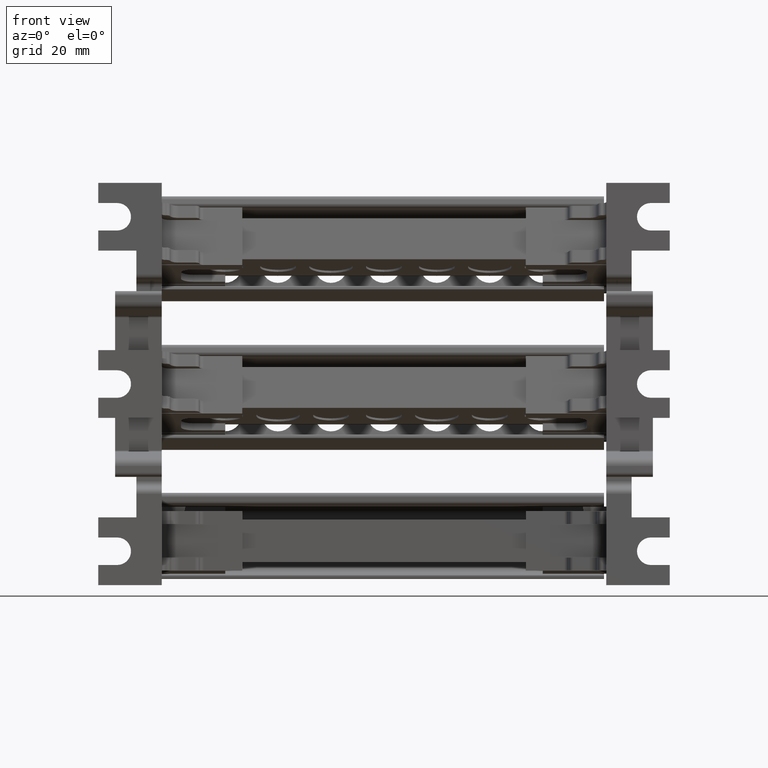
[diagram: clean part render]
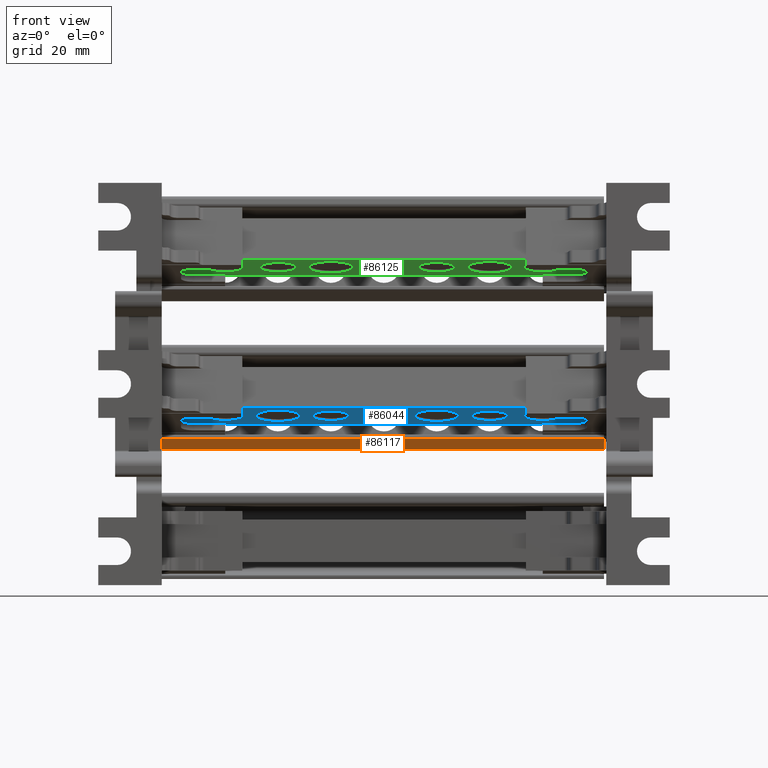
[diagram: same view with three faces highlighted in distinct colors, each labeled with its STEP entity id]
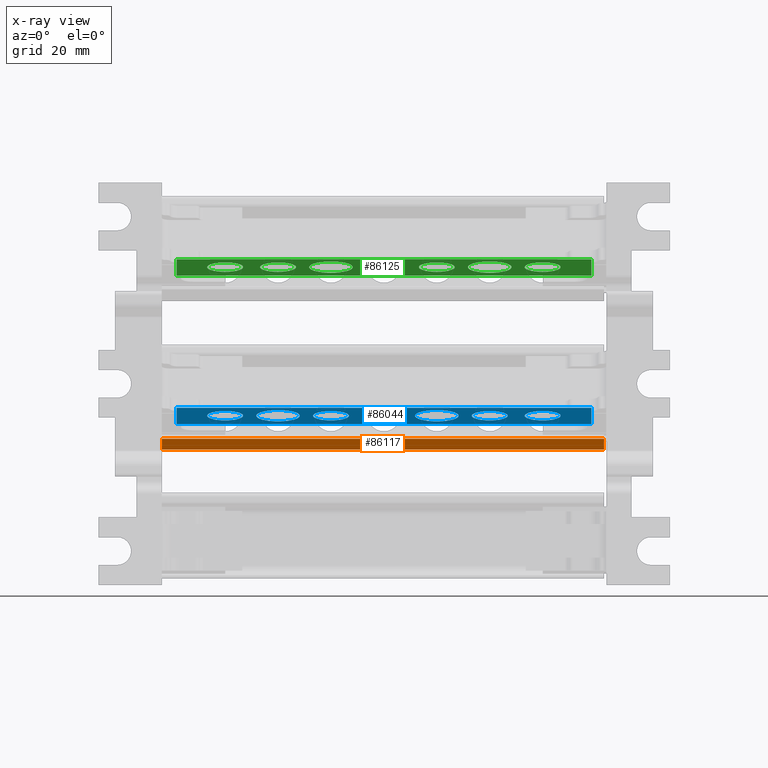
[diagram: x-ray of the same camera — body ghosted, the three highlighted faces saturated]
A machine part, front view with three faces highlighted in distinct colors.
The next image is the same camera in x-ray (body ghosted, the three faces saturated) — at least one of them is partly hidden behind the body in this view.
Their STEP definitions:

[orange] entity #86117 — the highlighted planar face has unit normal (0, -0.2419, -0.9703).
#241 = EDGE_CURVE ( 'NONE', #58085, #12368, #85978, .T. ) ;
#243 = EDGE_CURVE ( 'NONE', #20324, #58085, #85964, .T. ) ;
#12368 = VERTEX_POINT ( 'NONE', #72841 ) ;
#13487 = VECTOR ( 'NONE', #85987, 999.9999999999998900 ) ;
#13521 = VECTOR ( 'NONE', #86000, 1000.000000000000000 ) ;
#14037 = CARTESIAN_POINT ( 'NONE',  ( 43.67005696747482800, 266.3779126687655900, -9.778613820399819200 ) ) ;
#14040 = DIRECTION ( 'NONE',  ( -1.000000000000000000, -8.376886114858137600E-016, -3.359791546731990900E-015 ) ) ;
#14052 = LINE ( 'NONE', #14037, #19005 ) ;
#19005 = VECTOR ( 'NONE', #14040, 1000.000000000000000 ) ;
#20288 = VERTEX_POINT ( 'NONE', #73191 ) ;
#20324 = VERTEX_POINT ( 'NONE', #73389 ) ;
#40687 = ORIENTED_EDGE ( 'NONE', *, *, #243, .F. ) ;
#40762 = ORIENTED_EDGE ( 'NONE', *, *, #89547, .T. ) ;
#40774 = ORIENTED_EDGE ( 'NONE', *, *, #91820, .T. ) ;
#40775 = ORIENTED_EDGE ( 'NONE', *, *, #241, .F. ) ;
#50651 = DIRECTION ( 'NONE',  ( 3.462646595785480000E-015, -0.2419214864449051000, -0.9702958282896446700 ) ) ;
#50660 = FACE_OUTER_BOUND ( 'NONE', #77288, .T. ) ;
#50680 = DIRECTION ( 'NONE',  ( 0.0000000000000000000, 0.9702958282896446700, -0.2419214864449051000 ) ) ;
#50714 = PLANE ( 'NONE',  #67358 ) ;
#50716 = CARTESIAN_POINT ( 'NONE',  ( 43.67005696747482800, 267.5285583246342800, -10.06550148839052700 ) ) ;
#58085 = VERTEX_POINT ( 'NONE', #69943 ) ;
#67358 = AXIS2_PLACEMENT_3D ( 'NONE', #50716, #50651, #50680 ) ;
#69943 = CARTESIAN_POINT ( 'NONE',  ( 43.67005696747489200, 276.4362352860718500, -12.28643080546339100 ) ) ;
#72338 = VECTOR ( 'NONE', #84263, 1000.000000000000000 ) ;
#72841 = CARTESIAN_POINT ( 'NONE',  ( -60.79994303252513500, 276.4362352860727600, -12.28643080546403300 ) ) ;
#73191 = CARTESIAN_POINT ( 'NONE',  ( -60.79994303252518500, 266.3779126105878300, -9.778613805894877900 ) ) ;
#73389 = CARTESIAN_POINT ( 'NONE',  ( 43.67005696747481400, 266.3779126105874300, -9.778613805894382300 ) ) ;
#77288 = EDGE_LOOP ( 'NONE', ( #40687, #40762, #40774, #40775 ) ) ;
#84224 = LINE ( 'NONE', #84286, #72338 ) ;
#84263 = DIRECTION ( 'NONE',  ( 0.0000000000000000000, 0.9702958282896446700, -0.2419214864449051000 ) ) ;
#84286 = CARTESIAN_POINT ( 'NONE',  ( -60.79994303252517800, 267.5285583246341600, -10.06550148839087700 ) ) ;
#85961 = CARTESIAN_POINT ( 'NONE',  ( 43.67005696747486400, 276.4362352860718500, -12.28643080546345900 ) ) ;
#85964 = LINE ( 'NONE', #85980, #13487 ) ;
#85978 = LINE ( 'NONE', #85961, #13521 ) ;
#85980 = CARTESIAN_POINT ( 'NONE',  ( 43.67005696747476400, 266.3779126687655900, -9.778613820399781900 ) ) ;
#85987 = DIRECTION ( 'NONE',  ( 9.371236228642864500E-015, 0.9702958282896462200, -0.2419214864448991900 ) ) ;
#86000 = DIRECTION ( 'NONE',  ( -1.000000000000000000, 8.654813373745597700E-015, -5.726533854765768700E-015 ) ) ;
#86117 = ADVANCED_FACE ( 'NONE', ( #50660 ), #50714, .T. ) ;
#89547 = EDGE_CURVE ( 'NONE', #20324, #20288, #14052, .T. ) ;
#91820 = EDGE_CURVE ( 'NONE', #20288, #12368, #84224, .T. ) ;

[blue] entity #86044 — the highlighted planar face has unit normal (0, -0.2588, -0.9659).
#588 = EDGE_CURVE ( 'NONE', #14542, #10491, #84809, .T. ) ;
#625 = EDGE_CURVE ( 'NONE', #12026, #10859, #66829, .T. ) ;
#636 = EDGE_CURVE ( 'NONE', #10491, #10859, #66930, .T. ) ;
#7373 = DIRECTION ( 'NONE',  ( -3.448596597678680000E-015, 0.2588190451026485300, 0.9659258262890340100 ) ) ;
#7410 = CARTESIAN_POINT ( 'NONE',  ( -8.329943032525321200, 261.4439999081703300, -4.332175948218287300 ) ) ;
#7419 = DIRECTION ( 'NONE',  ( 0.0000000000000000000, -0.9659258262890337800, 0.2588190451026493000 ) ) ;
#10491 = VERTEX_POINT ( 'NONE', #75438 ) ;
#10859 = VERTEX_POINT ( 'NONE', #75567 ) ;
#11930 = VERTEX_POINT ( 'NONE', #73671 ) ;
#12026 = VERTEX_POINT ( 'NONE', #72559 ) ;
#14542 = VERTEX_POINT ( 'NONE', #72881 ) ;
#14553 = VERTEX_POINT ( 'NONE', #72890 ) ;
#14571 = VERTEX_POINT ( 'NONE', #72876 ) ;
#14619 = VERTEX_POINT ( 'NONE', #73058 ) ;
#17856 = CIRCLE ( 'NONE', #17880, 4.249999999999992900 ) ;
#17880 = AXIS2_PLACEMENT_3D ( 'NONE', #32942, #32919, #32933 ) ;
#17893 = CIRCLE ( 'NONE', #17938, 4.249999999999992000 ) ;
#17938 = AXIS2_PLACEMENT_3D ( 'NONE', #32910, #32927, #32928 ) ;
#17955 = CIRCLE ( 'NONE', #17970, 5.149999999999981700 ) ;
#17970 = AXIS2_PLACEMENT_3D ( 'NONE', #33011, #33012, #33021 ) ;
#17990 = CIRCLE ( 'NONE', #18081, 5.149999999999981700 ) ;
#18003 = CIRCLE ( 'NONE', #18018, 4.249999999999992900 ) ;
#18018 = AXIS2_PLACEMENT_3D ( 'NONE', #7410, #7373, #7419 ) ;
#18081 = AXIS2_PLACEMENT_3D ( 'NONE', #32999, #33013, #33000 ) ;
#19147 = CIRCLE ( 'NONE', #19148, 4.249999999999992900 ) ;
#19148 = AXIS2_PLACEMENT_3D ( 'NONE', #33314, #33293, #33315 ) ;
#19155 = CIRCLE ( 'NONE', #19188, 4.249999999999992000 ) ;
#19188 = AXIS2_PLACEMENT_3D ( 'NONE', #33250, #33262, #33268 ) ;
#20356 = VERTEX_POINT ( 'NONE', #73352 ) ;
#20358 = VERTEX_POINT ( 'NONE', #73361 ) ;
#20370 = VERTEX_POINT ( 'NONE', #73409 ) ;
#20373 = VERTEX_POINT ( 'NONE', #73465 ) ;
#20418 = VERTEX_POINT ( 'NONE', #73430 ) ;
#20419 = VERTEX_POINT ( 'NONE', #73494 ) ;
#20424 = VERTEX_POINT ( 'NONE', #73448 ) ;
#20432 = VERTEX_POINT ( 'NONE', #73497 ) ;
#20436 = VERTEX_POINT ( 'NONE', #73555 ) ;
#20448 = VERTEX_POINT ( 'NONE', #73529 ) ;
#20458 = VERTEX_POINT ( 'NONE', #73624 ) ;
#20472 = VERTEX_POINT ( 'NONE', #73617 ) ;
#20476 = VERTEX_POINT ( 'NONE', #73618 ) ;
#20477 = VERTEX_POINT ( 'NONE', #73616 ) ;
#24962 = CARTESIAN_POINT ( 'NONE',  ( -33.32994303252532100, 261.4439999081705500, -4.332175948218443700 ) ) ;
#24979 = DIRECTION ( 'NONE',  ( -3.448596597678680000E-015, 0.2588190451026485300, 0.9659258262890340100 ) ) ;
#25000 = DIRECTION ( 'NONE',  ( 0.0000000000000000000, 0.9659258262890337800, -0.2588190451026496900 ) ) ;
#25023 = DIRECTION ( 'NONE',  ( -0.0000000000000000000, -0.9659258262890340100, 0.2588190451026485300 ) ) ;
#25028 = CARTESIAN_POINT ( 'NONE',  ( 32.77005696747561100, 268.9782213532253100, -6.350964500018943000 ) ) ;
#25033 = LINE ( 'NONE', #25028, #73421 ) ;
#25079 = LINE ( 'NONE', #25094, #73384 ) ;
#25086 = DIRECTION ( 'NONE',  ( -1.000000000000000000, -8.925624783554386000E-016, -3.331088518150330400E-015 ) ) ;
#25094 = CARTESIAN_POINT ( 'NONE',  ( -57.42994303252525200, 254.4929479779187600, -2.469647196959783300 ) ) ;
#25117 = DIRECTION ( 'NONE',  ( -1.000000000000000000, -8.925624783554386000E-016, -3.331088518150330400E-015 ) ) ;
#25138 = DIRECTION ( 'NONE',  ( -3.448596597678680000E-015, 0.2588190451026485300, 0.9659258262890340100 ) ) ;
#25154 = CARTESIAN_POINT ( 'NONE',  ( -57.42994303252525200, 254.4893339588888900, -2.468678823479284000 ) ) ;
#25183 = LINE ( 'NONE', #25154, #73408 ) ;
#25195 = CARTESIAN_POINT ( 'NONE',  ( 16.67005696747467500, 261.4439999081702100, -4.332175948218160300 ) ) ;
#25215 = DIRECTION ( 'NONE',  ( 0.0000000000000000000, 0.9659258262890339000, -0.2588190451026485800 ) ) ;
#25317 = DIRECTION ( 'NONE',  ( -3.448596597678680000E-015, 0.2588190451026485300, 0.9659258262890340100 ) ) ;
#25332 = CARTESIAN_POINT ( 'NONE',  ( -8.329943032525321200, 261.4439999081703300, -4.332175948218287300 ) ) ;
#25345 = DIRECTION ( 'NONE',  ( -3.448596597678680000E-015, 0.2588190451026485300, 0.9659258262890340100 ) ) ;
#25347 = DIRECTION ( 'NONE',  ( 0.0000000000000000000, -0.9659258262890337800, 0.2588190451026493000 ) ) ;
#25353 = CARTESIAN_POINT ( 'NONE',  ( -20.82994303252532100, 261.4439999081704400, -4.332175948218369900 ) ) ;
#25361 = DIRECTION ( 'NONE',  ( 0.0000000000000000000, 0.9659258262890337800, -0.2588190451026491900 ) ) ;
#25435 = DIRECTION ( 'NONE',  ( -1.000000000000000000, -8.925624783554386000E-016, -3.331088518150330400E-015 ) ) ;
#25446 = CARTESIAN_POINT ( 'NONE',  ( -57.42994303252525200, 254.4929479779195000, -2.469647196959968000 ) ) ;
#25450 = LINE ( 'NONE', #25446, #73491 ) ;
#32910 = CARTESIAN_POINT ( 'NONE',  ( 16.67005696747467500, 261.4439999081702100, -4.332175948218160300 ) ) ;
#32919 = DIRECTION ( 'NONE',  ( -3.448596597678680000E-015, 0.2588190451026485300, 0.9659258262890340100 ) ) ;
#32927 = DIRECTION ( 'NONE',  ( -3.448596597678680000E-015, 0.2588190451026485300, 0.9659258262890340100 ) ) ;
#32928 = DIRECTION ( 'NONE',  ( 0.0000000000000000000, 0.9659258262890339000, -0.2588190451026485800 ) ) ;
#32933 = DIRECTION ( 'NONE',  ( 0.0000000000000000000, 0.9659258262890337800, -0.2588190451026491900 ) ) ;
#32942 = CARTESIAN_POINT ( 'NONE',  ( -20.82994303252532100, 261.4439999081704400, -4.332175948218369900 ) ) ;
#32999 = CARTESIAN_POINT ( 'NONE',  ( 4.170056967474678800, 261.4439999081703300, -4.332175948218234900 ) ) ;
#33000 = DIRECTION ( 'NONE',  ( 0.0000000000000000000, 0.9659258262890337800, -0.2588190451026496900 ) ) ;
#33011 = CARTESIAN_POINT ( 'NONE',  ( -33.32994303252532100, 261.4439999081705500, -4.332175948218443700 ) ) ;
#33012 = DIRECTION ( 'NONE',  ( -3.448596597678680000E-015, 0.2588190451026485300, 0.9659258262890340100 ) ) ;
#33013 = DIRECTION ( 'NONE',  ( -3.448596597678680000E-015, 0.2588190451026485300, 0.9659258262890340100 ) ) ;
#33021 = DIRECTION ( 'NONE',  ( 0.0000000000000000000, 0.9659258262890337800, -0.2588190451026496900 ) ) ;
#33250 = CARTESIAN_POINT ( 'NONE',  ( -45.82994303252532800, 261.4439999081706700, -4.332175948218509400 ) ) ;
#33262 = DIRECTION ( 'NONE',  ( -3.448596597678680000E-015, 0.2588190451026485300, 0.9659258262890340100 ) ) ;
#33268 = DIRECTION ( 'NONE',  ( 0.0000000000000000000, -0.9659258262890339000, 0.2588190451026488000 ) ) ;
#33293 = DIRECTION ( 'NONE',  ( -3.448596597678680000E-015, 0.2588190451026485300, 0.9659258262890340100 ) ) ;
#33314 = CARTESIAN_POINT ( 'NONE',  ( 29.17005696747467200, 261.4439999081700400, -4.332175948218072400 ) ) ;
#33315 = DIRECTION ( 'NONE',  ( 0.0000000000000000000, -0.9659258262890337800, 0.2588190451026493600 ) ) ;
#33860 = LINE ( 'NONE', #33868, #64350 ) ;
#33868 = CARTESIAN_POINT ( 'NONE',  ( -49.37394303252701600, 254.4893339588896900, -2.468678823479462100 ) ) ;
#33878 = DIRECTION ( 'NONE',  ( 0.0000000000000000000, 0.9659258262882264300, -0.2588190451056627300 ) ) ;
#38511 = ORIENTED_EDGE ( 'NONE', *, *, #91130, .T. ) ;
#38516 = ORIENTED_EDGE ( 'NONE', *, *, #89952, .T. ) ;
#38523 = ORIENTED_EDGE ( 'NONE', *, *, #91253, .T. ) ;
#38524 = ORIENTED_EDGE ( 'NONE', *, *, #91345, .T. ) ;
#38526 = ORIENTED_EDGE ( 'NONE', *, *, #92657, .T. ) ;
#38527 = ORIENTED_EDGE ( 'NONE', *, *, #91361, .T. ) ;
#38540 = ORIENTED_EDGE ( 'NONE', *, *, #91195, .T. ) ;
#38541 = ORIENTED_EDGE ( 'NONE', *, *, #91148, .T. ) ;
#38568 = ORIENTED_EDGE ( 'NONE', *, *, #91289, .T. ) ;
#38573 = ORIENTED_EDGE ( 'NONE', *, *, #89819, .T. ) ;
#38577 = ORIENTED_EDGE ( 'NONE', *, *, #91145, .T. ) ;
#38578 = ORIENTED_EDGE ( 'NONE', *, *, #588, .T. ) ;
#38579 = ORIENTED_EDGE ( 'NONE', *, *, #89774, .T. ) ;
#38584 = ORIENTED_EDGE ( 'NONE', *, *, #89933, .T. ) ;
#38585 = ORIENTED_EDGE ( 'NONE', *, *, #89880, .T. ) ;
#38592 = ORIENTED_EDGE ( 'NONE', *, *, #91184, .T. ) ;
#38595 = ORIENTED_EDGE ( 'NONE', *, *, #90007, .T. ) ;
#38597 = ORIENTED_EDGE ( 'NONE', *, *, #91293, .T. ) ;
#38603 = ORIENTED_EDGE ( 'NONE', *, *, #91255, .T. ) ;
#38605 = ORIENTED_EDGE ( 'NONE', *, *, #89895, .T. ) ;
#38606 = ORIENTED_EDGE ( 'NONE', *, *, #636, .T. ) ;
#38611 = ORIENTED_EDGE ( 'NONE', *, *, #91379, .T. ) ;
#38628 = ORIENTED_EDGE ( 'NONE', *, *, #625, .F. ) ;
#38629 = ORIENTED_EDGE ( 'NONE', *, *, #91235, .T. ) ;
#40903 = LINE ( 'NONE', #40978, #73082 ) ;
#40933 = DIRECTION ( 'NONE',  ( -0.0000000000000000000, -0.9659258262890340100, 0.2588190451026485300 ) ) ;
#40978 = CARTESIAN_POINT ( 'NONE',  ( 40.67005696747465700, 268.9782213532253600, -6.350964500018915400 ) ) ;
#41019 = DIRECTION ( 'NONE',  ( -3.448596597678680000E-015, 0.2588190451026485300, 0.9659258262890340100 ) ) ;
#41045 = DIRECTION ( 'NONE',  ( -3.448596597678680000E-015, 0.2588190451026485300, 0.9659258262890340100 ) ) ;
#41047 = DIRECTION ( 'NONE',  ( 0.0000000000000000000, 0.9659258262890337800, -0.2588190451026496900 ) ) ;
#41093 = CARTESIAN_POINT ( 'NONE',  ( -45.82994303252532800, 261.4439999081706700, -4.332175948218509400 ) ) ;
#41095 = DIRECTION ( 'NONE',  ( 0.0000000000000000000, -0.9659258262890339000, 0.2588190451026488000 ) ) ;
#41106 = CARTESIAN_POINT ( 'NONE',  ( 4.170056967474678800, 261.4439999081703300, -4.332175948218234900 ) ) ;
#41291 = DIRECTION ( 'NONE',  ( -3.448596597678680000E-015, 0.2588190451026485300, 0.9659258262890340100 ) ) ;
#41295 = CARTESIAN_POINT ( 'NONE',  ( 29.17005696747467200, 261.4439999081700400, -4.332175948218072400 ) ) ;
#41356 = DIRECTION ( 'NONE',  ( 0.0000000000000000000, -0.9659258262890337800, 0.2588190451026493600 ) ) ;
#41377 = DIRECTION ( 'NONE',  ( 0.0000000000000000000, 0.9659258262890340100, -0.2588190451026485300 ) ) ;
#41390 = CARTESIAN_POINT ( 'NONE',  ( -57.26994303252539700, 268.9782213532252500, -6.350964500019242300 ) ) ;
#41448 = LINE ( 'NONE', #41390, #73211 ) ;
#56366 = VERTEX_POINT ( 'NONE', #69501 ) ;
#56537 = VERTEX_POINT ( 'NONE', #69706 ) ;
#60303 = FACE_BOUND ( 'NONE', #77210, .T. ) ;
#60304 = FACE_BOUND ( 'NONE', #77158, .T. ) ;
#60305 = FACE_BOUND ( 'NONE', #77164, .T. ) ;
#60310 = DIRECTION ( 'NONE',  ( 3.448596597678680000E-015, -0.2588190451026485300, -0.9659258262890340100 ) ) ;
#60318 = FACE_BOUND ( 'NONE', #77191, .T. ) ;
#60319 = DIRECTION ( 'NONE',  ( 0.0000000000000000000, 0.9659258262890340100, -0.2588190451026485300 ) ) ;
#60331 = PLANE ( 'NONE',  #67251 ) ;
#60340 = CARTESIAN_POINT ( 'NONE',  ( -57.42994303252525200, 268.9782213532252500, -6.350964500019243200 ) ) ;
#60347 = FACE_BOUND ( 'NONE', #77188, .T. ) ;
#60351 = FACE_OUTER_BOUND ( 'NONE', #77276, .T. ) ;
#60357 = FACE_BOUND ( 'NONE', #77252, .T. ) ;
#60358 = FACE_BOUND ( 'NONE', #77233, .T. ) ;
#64350 = VECTOR ( 'NONE', #33878, 1000.000000000000000 ) ;
#66808 = CARTESIAN_POINT ( 'NONE',  ( 40.67005696747467900, 261.4850255335666700, -4.343168731412051300 ) ) ;
#66810 = DIRECTION ( 'NONE',  ( 9.205753445159680800E-015, 0.9659258262890340100, -0.2588190451026483000 ) ) ;
#66829 = LINE ( 'NONE', #66808, #89501 ) ;
#66921 = CARTESIAN_POINT ( 'NONE',  ( 40.67005696747475000, 268.9782213532244000, -6.350964500018673000 ) ) ;
#66930 = LINE ( 'NONE', #66921, #89477 ) ;
#66940 = DIRECTION ( 'NONE',  ( -1.009980722526125500E-014, -0.9659258262890337800, 0.2588190451026491900 ) ) ;
#67251 = AXIS2_PLACEMENT_3D ( 'NONE', #60340, #60310, #60319 ) ;
#69501 = CARTESIAN_POINT ( 'NONE',  ( -49.37394303252703100, 254.4929479779192700, -2.469647196959896100 ) ) ;
#69706 = CARTESIAN_POINT ( 'NONE',  ( -49.37394303252701600, 254.4893339588895200, -2.468678823479412400 ) ) ;
#72559 = CARTESIAN_POINT ( 'NONE',  ( 40.67005696747463600, 261.4850255335663300, -4.343168731411958000 ) ) ;
#72876 = CARTESIAN_POINT ( 'NONE',  ( 40.67005696747463600, 254.4929479779188700, -2.469647196959452500 ) ) ;
#72881 = CARTESIAN_POINT ( 'NONE',  ( -57.26994303252536200, 268.9782213532252500, -6.350964500019242300 ) ) ;
#72890 = CARTESIAN_POINT ( 'NONE',  ( -57.26994303252539700, 254.4929479779192700, -2.469647196959920500 ) ) ;
#73051 = AXIS2_PLACEMENT_3D ( 'NONE', #41093, #41019, #41095 ) ;
#73058 = CARTESIAN_POINT ( 'NONE',  ( 32.77005696747561100, 254.4893339588889500, -2.468678823478989600 ) ) ;
#73082 = VECTOR ( 'NONE', #40933, 1000.000000000000000 ) ;
#73115 = CIRCLE ( 'NONE', #73282, 5.149999999999981700 ) ;
#73150 = CIRCLE ( 'NONE', #73051, 4.249999999999992000 ) ;
#73211 = VECTOR ( 'NONE', #41377, 1000.000000000000000 ) ;
#73215 = CIRCLE ( 'NONE', #73286, 5.149999999999981700 ) ;
#73246 = AXIS2_PLACEMENT_3D ( 'NONE', #41295, #41291, #41356 ) ;
#73270 = CIRCLE ( 'NONE', #73246, 4.249999999999992900 ) ;
#73282 = AXIS2_PLACEMENT_3D ( 'NONE', #41106, #41045, #41047 ) ;
#73286 = AXIS2_PLACEMENT_3D ( 'NONE', #24962, #24979, #25000 ) ;
#73291 = CIRCLE ( 'NONE', #73295, 4.249999999999992000 ) ;
#73295 = AXIS2_PLACEMENT_3D ( 'NONE', #25195, #25138, #25215 ) ;
#73349 = CIRCLE ( 'NONE', #73401, 4.249999999999992900 ) ;
#73352 = CARTESIAN_POINT ( 'NONE',  ( -33.32994303252532100, 256.4694819027820900, -2.999257865939807500 ) ) ;
#73361 = CARTESIAN_POINT ( 'NONE',  ( -8.329943032525321200, 265.5491846698987500, -5.432156889904542000 ) ) ;
#73384 = VECTOR ( 'NONE', #25086, 1000.000000000000000 ) ;
#73401 = AXIS2_PLACEMENT_3D ( 'NONE', #25353, #25317, #25361 ) ;
#73408 = VECTOR ( 'NONE', #25117, 1000.000000000000000 ) ;
#73409 = CARTESIAN_POINT ( 'NONE',  ( -45.82994303252532800, 265.5491846698990900, -5.432156889904763200 ) ) ;
#73421 = VECTOR ( 'NONE', #25023, 1000.000000000000000 ) ;
#73430 = CARTESIAN_POINT ( 'NONE',  ( 4.170056967474679700, 266.4185179135587900, -5.665094030496868900 ) ) ;
#73448 = CARTESIAN_POINT ( 'NONE',  ( -20.82994303252532100, 257.3388151464420700, -3.232195006532115200 ) ) ;
#73451 = AXIS2_PLACEMENT_3D ( 'NONE', #25332, #25345, #25347 ) ;
#73465 = CARTESIAN_POINT ( 'NONE',  ( 16.67005696747467500, 257.3388151464417900, -3.232195006531904700 ) ) ;
#73470 = CIRCLE ( 'NONE', #73451, 4.249999999999992900 ) ;
#73491 = VECTOR ( 'NONE', #25435, 1000.000000000000000 ) ;
#73494 = CARTESIAN_POINT ( 'NONE',  ( -8.329943032525321200, 257.3388151464419600, -3.232195006532033500 ) ) ;
#73497 = CARTESIAN_POINT ( 'NONE',  ( -33.32994303252532100, 266.4185179135590700, -5.665094030497078500 ) ) ;
#73529 = CARTESIAN_POINT ( 'NONE',  ( 4.170056967474678800, 256.4694819027818100, -2.999257865939598300 ) ) ;
#73555 = CARTESIAN_POINT ( 'NONE',  ( 29.17005696747467200, 265.5491846698984100, -5.432156889904327100 ) ) ;
#73616 = CARTESIAN_POINT ( 'NONE',  ( -20.82994303252532100, 265.5491846698988600, -5.432156889904624600 ) ) ;
#73617 = CARTESIAN_POINT ( 'NONE',  ( 16.67005696747467500, 265.5491846698985800, -5.432156889904412400 ) ) ;
#73618 = CARTESIAN_POINT ( 'NONE',  ( -45.82994303252532800, 257.3388151464423000, -3.232195006532255600 ) ) ;
#73624 = CARTESIAN_POINT ( 'NONE',  ( 29.17005696747467200, 257.3388151464416200, -3.232195006531818100 ) ) ;
#73671 = CARTESIAN_POINT ( 'NONE',  ( 32.77005696747561100, 254.4929479779189900, -2.469647196959505700 ) ) ;
#75438 = CARTESIAN_POINT ( 'NONE',  ( 40.67005696747475000, 268.9782213532247400, -6.350964500018753800 ) ) ;
#75567 = CARTESIAN_POINT ( 'NONE',  ( 40.67005696747470000, 263.6692433276639300, -4.928428125434423100 ) ) ;
#77158 = EDGE_LOOP ( 'NONE', ( #38577, #38579 ) ) ;
#77164 = EDGE_LOOP ( 'NONE', ( #38524, #38585 ) ) ;
#77188 = EDGE_LOOP ( 'NONE', ( #38541, #38516 ) ) ;
#77191 = EDGE_LOOP ( 'NONE', ( #38629, #38584 ) ) ;
#77210 = EDGE_LOOP ( 'NONE', ( #38568, #38605 ) ) ;
#77233 = EDGE_LOOP ( 'NONE', ( #38592, #38573 ) ) ;
#77252 = EDGE_LOOP ( 'NONE', ( #38527, #38595 ) ) ;
#77276 = EDGE_LOOP ( 'NONE', ( #38597, #38526, #38611, #38540, #38578, #38606, #38628, #38511, #38603, #38523 ) ) ;
#84809 = LINE ( 'NONE', #84924, #89301 ) ;
#84899 = DIRECTION ( 'NONE',  ( 1.000000000000000000, 8.925624783554386000E-016, 3.331088518150330400E-015 ) ) ;
#84924 = CARTESIAN_POINT ( 'NONE',  ( -57.42994303252525200, 268.9782213532252500, -6.350964500019243200 ) ) ;
#86044 = ADVANCED_FACE ( 'NONE', ( #60351, #60304, #60318, #60305, #60358, #60303, #60347, #60357 ), #60331, .T. ) ;
#89301 = VECTOR ( 'NONE', #84899, 1000.000000000000000 ) ;
#89477 = VECTOR ( 'NONE', #66940, 1000.000000000000200 ) ;
#89501 = VECTOR ( 'NONE', #66810, 1000.000000000000200 ) ;
#89774 = EDGE_CURVE ( 'NONE', #20370, #20476, #19155, .T. ) ;
#89819 = EDGE_CURVE ( 'NONE', #20436, #20458, #19147, .T. ) ;
#89880 = EDGE_CURVE ( 'NONE', #20477, #20424, #17856, .T. ) ;
#89895 = EDGE_CURVE ( 'NONE', #20472, #20373, #17893, .T. ) ;
#89933 = EDGE_CURVE ( 'NONE', #20432, #20356, #17955, .T. ) ;
#89952 = EDGE_CURVE ( 'NONE', #20418, #20448, #17990, .T. ) ;
#90007 = EDGE_CURVE ( 'NONE', #20358, #20419, #18003, .T. ) ;
#91130 = EDGE_CURVE ( 'NONE', #12026, #14571, #40903, .T. ) ;
#91145 = EDGE_CURVE ( 'NONE', #20476, #20370, #73150, .T. ) ;
#91148 = EDGE_CURVE ( 'NONE', #20448, #20418, #73115, .T. ) ;
#91184 = EDGE_CURVE ( 'NONE', #20458, #20436, #73270, .T. ) ;
#91195 = EDGE_CURVE ( 'NONE', #14553, #14542, #41448, .T. ) ;
#91235 = EDGE_CURVE ( 'NONE', #20356, #20432, #73215, .T. ) ;
#91253 = EDGE_CURVE ( 'NONE', #11930, #14619, #25033, .T. ) ;
#91255 = EDGE_CURVE ( 'NONE', #14571, #11930, #25079, .T. ) ;
#91289 = EDGE_CURVE ( 'NONE', #20373, #20472, #73291, .T. ) ;
#91293 = EDGE_CURVE ( 'NONE', #14619, #56537, #25183, .T. ) ;
#91345 = EDGE_CURVE ( 'NONE', #20424, #20477, #73349, .T. ) ;
#91361 = EDGE_CURVE ( 'NONE', #20419, #20358, #73470, .T. ) ;
#91379 = EDGE_CURVE ( 'NONE', #56366, #14553, #25450, .T. ) ;
#92657 = EDGE_CURVE ( 'NONE', #56537, #56366, #33860, .T. ) ;

[green] entity #86125 — the highlighted planar face has unit normal (0, -0.2588, -0.9659).
#184 = EDGE_CURVE ( 'NONE', #56596, #56620, #85740, .T. ) ;
#668 = EDGE_CURVE ( 'NONE', #12096, #55972, #67099, .T. ) ;
#691 = EDGE_CURVE ( 'NONE', #12094, #56030, #67248, .T. ) ;
#706 = EDGE_CURVE ( 'NONE', #55972, #56030, #67333, .T. ) ;
#12041 = VERTEX_POINT ( 'NONE', #72576 ) ;
#12094 = VERTEX_POINT ( 'NONE', #72583 ) ;
#12096 = VERTEX_POINT ( 'NONE', #72546 ) ;
#12118 = VERTEX_POINT ( 'NONE', #72728 ) ;
#12119 = VERTEX_POINT ( 'NONE', #72505 ) ;
#12129 = VERTEX_POINT ( 'NONE', #72693 ) ;
#13468 = VECTOR ( 'NONE', #85789, 1000.000000000000100 ) ;
#13935 = DIRECTION ( 'NONE',  ( 0.0000000000000000000, -0.9659258262890269000, 0.2588190451026750600 ) ) ;
#14005 = CARTESIAN_POINT ( 'NONE',  ( 4.170056967474689500, 254.7791610848524900, 30.76519756212403700 ) ) ;
#14015 = DIRECTION ( 'NONE',  ( -3.488013914155865300E-015, 0.2588190451026765000, 0.9659258262890266800 ) ) ;
#14017 = DIRECTION ( 'NONE',  ( -3.488013914155865300E-015, 0.2588190451026765000, 0.9659258262890266800 ) ) ;
#14030 = CARTESIAN_POINT ( 'NONE',  ( -45.82994303252532100, 254.7791610848529400, 30.76519756212376000 ) ) ;
#14049 = DIRECTION ( 'NONE',  ( 0.0000000000000000000, -0.9659258262890269000, 0.2588190451026750600 ) ) ;
#14072 = CARTESIAN_POINT ( 'NONE',  ( 29.17005696747468200, 254.7791610848522600, 30.76519756212420400 ) ) ;
#14075 = DIRECTION ( 'NONE',  ( 0.0000000000000000000, -0.9659258262890269000, 0.2588190451026750600 ) ) ;
#14079 = DIRECTION ( 'NONE',  ( -3.488013914155865300E-015, 0.2588190451026765000, 0.9659258262890266800 ) ) ;
#14081 = DIRECTION ( 'NONE',  ( -3.488013914155865300E-015, 0.2588190451026765000, 0.9659258262890266800 ) ) ;
#14087 = DIRECTION ( 'NONE',  ( 0.0000000000000000000, -0.9659258262890269000, 0.2588190451026750600 ) ) ;
#14107 = CARTESIAN_POINT ( 'NONE',  ( -33.32994303252531400, 254.7791610848528300, 30.76519756212381300 ) ) ;
#14116 = DIRECTION ( 'NONE',  ( -3.488013914155865300E-015, 0.2588190451026765000, 0.9659258262890266800 ) ) ;
#14120 = DIRECTION ( 'NONE',  ( 0.0000000000000000000, -0.9659258262890264600, 0.2588190451026767800 ) ) ;
#14138 = CARTESIAN_POINT ( 'NONE',  ( 16.67005696747468600, 254.7791610848523800, 30.76519756212411800 ) ) ;
#18984 = AXIS2_PLACEMENT_3D ( 'NONE', #14005, #14015, #13935 ) ;
#19000 = CIRCLE ( 'NONE', #18984, 4.250000000000023100 ) ;
#19002 = CIRCLE ( 'NONE', #19004, 4.250000000000023100 ) ;
#19004 = AXIS2_PLACEMENT_3D ( 'NONE', #14030, #14017, #14049 ) ;
#19014 = AXIS2_PLACEMENT_3D ( 'NONE', #14107, #14079, #14087 ) ;
#19023 = AXIS2_PLACEMENT_3D ( 'NONE', #33065, #33039, #33066 ) ;
#19024 = CIRCLE ( 'NONE', #19040, 5.149999999999992400 ) ;
#19031 = CIRCLE ( 'NONE', #19054, 4.250000000000023100 ) ;
#19040 = AXIS2_PLACEMENT_3D ( 'NONE', #33059, #33036, #33068 ) ;
#19041 = CIRCLE ( 'NONE', #19014, 4.250000000000023100 ) ;
#19054 = AXIS2_PLACEMENT_3D ( 'NONE', #14072, #14081, #14075 ) ;
#19056 = CIRCLE ( 'NONE', #19023, 4.250000000000023100 ) ;
#19059 = AXIS2_PLACEMENT_3D ( 'NONE', #14138, #14116, #14120 ) ;
#19066 = CIRCLE ( 'NONE', #19059, 5.149999999999992400 ) ;
#20292 = VERTEX_POINT ( 'NONE', #73198 ) ;
#20301 = VERTEX_POINT ( 'NONE', #73260 ) ;
#20311 = VERTEX_POINT ( 'NONE', #73363 ) ;
#20322 = VERTEX_POINT ( 'NONE', #73313 ) ;
#20335 = VERTEX_POINT ( 'NONE', #73318 ) ;
#20339 = VERTEX_POINT ( 'NONE', #73283 ) ;
#20340 = VERTEX_POINT ( 'NONE', #73357 ) ;
#20353 = VERTEX_POINT ( 'NONE', #73322 ) ;
#20375 = VERTEX_POINT ( 'NONE', #73435 ) ;
#20407 = VERTEX_POINT ( 'NONE', #73467 ) ;
#20951 = VERTEX_POINT ( 'NONE', #70649 ) ;
#20960 = VERTEX_POINT ( 'NONE', #70777 ) ;
#20995 = VERTEX_POINT ( 'NONE', #70700 ) ;
#20999 = VERTEX_POINT ( 'NONE', #70702 ) ;
#25929 = DIRECTION ( 'NONE',  ( 0.0000000000000000000, -0.9659258262890269000, 0.2588190451026750600 ) ) ;
#25954 = DIRECTION ( 'NONE',  ( -3.488013914155865300E-015, 0.2588190451026765000, 0.9659258262890266800 ) ) ;
#25956 = CARTESIAN_POINT ( 'NONE',  ( -8.329943032525308800, 254.7791610848526000, 30.76519756212398000 ) ) ;
#25968 = CARTESIAN_POINT ( 'NONE',  ( 4.170056967474689500, 254.7791610848524900, 30.76519756212403700 ) ) ;
#25971 = DIRECTION ( 'NONE',  ( 0.0000000000000000000, -0.9659258262890269000, 0.2588190451026750600 ) ) ;
#25977 = DIRECTION ( 'NONE',  ( -3.488013914155865300E-015, 0.2588190451026765000, 0.9659258262890266800 ) ) ;
#26021 = DIRECTION ( 'NONE',  ( -1.000000000000000000, -9.027644305666698400E-016, -3.369162722138625200E-015 ) ) ;
#26027 = DIRECTION ( 'NONE',  ( 0.0000000000000000000, -0.9659258262890264600, 0.2588190451026767800 ) ) ;
#26028 = CARTESIAN_POINT ( 'NONE',  ( -57.42994303252524400, 247.8929479779203600, 32.61035280303608600 ) ) ;
#26029 = LINE ( 'NONE', #26028, #73765 ) ;
#26039 = CARTESIAN_POINT ( 'NONE',  ( 16.67005696747468600, 254.7791610848523800, 30.76519756212411800 ) ) ;
#26054 = DIRECTION ( 'NONE',  ( -3.488013914155865300E-015, 0.2588190451026765000, 0.9659258262890266800 ) ) ;
#26064 = CARTESIAN_POINT ( 'NONE',  ( -33.32994303252531400, 254.7791610848528300, 30.76519756212381300 ) ) ;
#26078 = DIRECTION ( 'NONE',  ( 0.0000000000000000000, -0.9659258262890269000, 0.2588190451026750600 ) ) ;
#26098 = DIRECTION ( 'NONE',  ( -3.488013914155865300E-015, 0.2588190451026765000, 0.9659258262890266800 ) ) ;
#33036 = DIRECTION ( 'NONE',  ( -3.488013914155865300E-015, 0.2588190451026765000, 0.9659258262890266800 ) ) ;
#33039 = DIRECTION ( 'NONE',  ( -3.488013914155865300E-015, 0.2588190451026765000, 0.9659258262890266800 ) ) ;
#33059 = CARTESIAN_POINT ( 'NONE',  ( -20.82994303252531400, 254.7791610848527200, 30.76519756212389800 ) ) ;
#33065 = CARTESIAN_POINT ( 'NONE',  ( -8.329943032525308800, 254.7791610848526000, 30.76519756212398000 ) ) ;
#33066 = DIRECTION ( 'NONE',  ( 0.0000000000000000000, -0.9659258262890269000, 0.2588190451026750600 ) ) ;
#33068 = DIRECTION ( 'NONE',  ( 0.0000000000000000000, -0.9659258262890264600, 0.2588190451026767800 ) ) ;
#40526 = ORIENTED_EDGE ( 'NONE', *, *, #691, .F. ) ;
#40527 = ORIENTED_EDGE ( 'NONE', *, *, #706, .T. ) ;
#40533 = ORIENTED_EDGE ( 'NONE', *, *, #89649, .T. ) ;
#40534 = ORIENTED_EDGE ( 'NONE', *, *, #91562, .T. ) ;
#40537 = ORIENTED_EDGE ( 'NONE', *, *, #184, .T. ) ;
#40539 = ORIENTED_EDGE ( 'NONE', *, *, #91605, .T. ) ;
#40548 = ORIENTED_EDGE ( 'NONE', *, *, #89539, .T. ) ;
#40557 = ORIENTED_EDGE ( 'NONE', *, *, #668, .T. ) ;
#40558 = ORIENTED_EDGE ( 'NONE', *, *, #89592, .T. ) ;
#40571 = ORIENTED_EDGE ( 'NONE', *, *, #91634, .T. ) ;
#40578 = ORIENTED_EDGE ( 'NONE', *, *, #91512, .T. ) ;
#40588 = ORIENTED_EDGE ( 'NONE', *, *, #91508, .T. ) ;
#40589 = ORIENTED_EDGE ( 'NONE', *, *, #89638, .T. ) ;
#40591 = ORIENTED_EDGE ( 'NONE', *, *, #91580, .T. ) ;
#40592 = ORIENTED_EDGE ( 'NONE', *, *, #91598, .T. ) ;
#40593 = ORIENTED_EDGE ( 'NONE', *, *, #89583, .T. ) ;
#40609 = ORIENTED_EDGE ( 'NONE', *, *, #89618, .T. ) ;
#40618 = ORIENTED_EDGE ( 'NONE', *, *, #91526, .T. ) ;
#40620 = ORIENTED_EDGE ( 'NONE', *, *, #91606, .T. ) ;
#40623 = ORIENTED_EDGE ( 'NONE', *, *, #91577, .T. ) ;
#40636 = ORIENTED_EDGE ( 'NONE', *, *, #91489, .T. ) ;
#40640 = ORIENTED_EDGE ( 'NONE', *, *, #91600, .T. ) ;
#40647 = ORIENTED_EDGE ( 'NONE', *, *, #91504, .T. ) ;
#40650 = ORIENTED_EDGE ( 'NONE', *, *, #89560, .T. ) ;
#50726 = FACE_BOUND ( 'NONE', #75726, .T. ) ;
#50728 = FACE_OUTER_BOUND ( 'NONE', #75704, .T. ) ;
#50742 = FACE_BOUND ( 'NONE', #75719, .T. ) ;
#50747 = CARTESIAN_POINT ( 'NONE',  ( -57.42994303252524400, 262.3133825299074100, 28.74640901032279700 ) ) ;
#50749 = DIRECTION ( 'NONE',  ( 3.488013914155864500E-015, -0.2588190451026765000, -0.9659258262890265700 ) ) ;
#50766 = FACE_BOUND ( 'NONE', #77170, .T. ) ;
#50768 = FACE_BOUND ( 'NONE', #75747, .T. ) ;
#50772 = PLANE ( 'NONE',  #67368 ) ;
#50779 = FACE_BOUND ( 'NONE', #75712, .T. ) ;
#50791 = FACE_BOUND ( 'NONE', #75705, .T. ) ;
#50802 = DIRECTION ( 'NONE',  ( 0.0000000000000000000, 0.9659258262890265700, -0.2588190451026765000 ) ) ;
#50806 = FACE_BOUND ( 'NONE', #75750, .T. ) ;
#55972 = VERTEX_POINT ( 'NONE', #69245 ) ;
#56030 = VERTEX_POINT ( 'NONE', #69424 ) ;
#56596 = VERTEX_POINT ( 'NONE', #69781 ) ;
#56620 = VERTEX_POINT ( 'NONE', #69730 ) ;
#67047 = DIRECTION ( 'NONE',  ( 1.000000000000000000, 9.027644305666698400E-016, 3.369162722138625200E-015 ) ) ;
#67069 = CARTESIAN_POINT ( 'NONE',  ( -57.42994303252524400, 262.3133825299074100, 28.74640901032279700 ) ) ;
#67099 = LINE ( 'NONE', #67069, #89462 ) ;
#67248 = LINE ( 'NONE', #67308, #89570 ) ;
#67272 = DIRECTION ( 'NONE',  ( 9.205753445159844800E-015, 0.9659258262890265700, -0.2588190451026763400 ) ) ;
#67308 = CARTESIAN_POINT ( 'NONE',  ( 40.67005696747467900, 254.8850255335675000, 30.73683126858379600 ) ) ;
#67323 = CARTESIAN_POINT ( 'NONE',  ( 40.67005696747476400, 262.3133825299066200, 28.74640901032336900 ) ) ;
#67333 = LINE ( 'NONE', #67323, #89516 ) ;
#67364 = DIRECTION ( 'NONE',  ( -1.150276701716541300E-014, -0.9659258262890263500, 0.2588190451026775000 ) ) ;
#67368 = AXIS2_PLACEMENT_3D ( 'NONE', #50747, #50749, #50802 ) ;
#69245 = CARTESIAN_POINT ( 'NONE',  ( 40.67005696747476400, 262.3133825299069600, 28.74640901032328700 ) ) ;
#69424 = CARTESIAN_POINT ( 'NONE',  ( 40.67005696747470000, 257.0692433276647600, 30.15157187456137000 ) ) ;
#69730 = CARTESIAN_POINT ( 'NONE',  ( -49.37394303252731500, 247.8929479779201900, 32.61035280303615000 ) ) ;
#69781 = CARTESIAN_POINT ( 'NONE',  ( -49.37394303252730100, 247.8244951355717700, 32.62869468686304200 ) ) ;
#70649 = CARTESIAN_POINT ( 'NONE',  ( -45.82994303252532100, 250.6739763231245500, 31.86517850381013900 ) ) ;
#70700 = CARTESIAN_POINT ( 'NONE',  ( -33.32994303252531400, 250.6739763231244400, 31.86517850381019600 ) ) ;
#70702 = CARTESIAN_POINT ( 'NONE',  ( -20.82994303252531400, 259.7536790902412300, 29.43227947984510700 ) ) ;
#70777 = CARTESIAN_POINT ( 'NONE',  ( -33.32994303252531400, 258.8843458465812000, 29.66521662043743000 ) ) ;
#72505 = CARTESIAN_POINT ( 'NONE',  ( 32.77005696747561800, 247.8929479779199000, 32.61035280303654800 ) ) ;
#72546 = CARTESIAN_POINT ( 'NONE',  ( -57.26994303252535400, 262.3133825299074100, 28.74640901032279700 ) ) ;
#72576 = CARTESIAN_POINT ( 'NONE',  ( 40.67005696747464300, 247.8929479779197900, 32.61035280303659100 ) ) ;
#72583 = CARTESIAN_POINT ( 'NONE',  ( 40.67005696747463600, 254.8850255335673900, 30.73683126858384200 ) ) ;
#72693 = CARTESIAN_POINT ( 'NONE',  ( -57.26994303252539000, 247.8929479779201900, 32.61035280303612900 ) ) ;
#72728 = CARTESIAN_POINT ( 'NONE',  ( 32.77005696747561100, 247.8244951355712500, 32.62869468686347600 ) ) ;
#73198 = CARTESIAN_POINT ( 'NONE',  ( -45.82994303252532100, 258.8843458465813100, 29.66521662043737700 ) ) ;
#73260 = CARTESIAN_POINT ( 'NONE',  ( 29.17005696747468200, 258.8843458465806300, 29.66521662043782100 ) ) ;
#73283 = CARTESIAN_POINT ( 'NONE',  ( 4.170056967474689500, 250.6739763231240900, 31.86517850381041900 ) ) ;
#73313 = CARTESIAN_POINT ( 'NONE',  ( 16.67005696747468600, 249.8046430794638900, 32.09811564440290300 ) ) ;
#73318 = CARTESIAN_POINT ( 'NONE',  ( -8.329943032525308800, 250.6739763231242100, 31.86517850381036300 ) ) ;
#73322 = CARTESIAN_POINT ( 'NONE',  ( -20.82994303252531400, 249.8046430794642300, 32.09811564440268200 ) ) ;
#73357 = CARTESIAN_POINT ( 'NONE',  ( 29.17005696747468200, 250.6739763231239000, 31.86517850381058300 ) ) ;
#73363 = CARTESIAN_POINT ( 'NONE',  ( 4.170056967474689500, 258.8843458465808600, 29.66521662043765400 ) ) ;
#73435 = CARTESIAN_POINT ( 'NONE',  ( 16.67005696747468600, 259.7536790902408900, 29.43227947984532700 ) ) ;
#73467 = CARTESIAN_POINT ( 'NONE',  ( -8.329943032525308800, 258.8843458465809700, 29.66521662043759700 ) ) ;
#73599 = CIRCLE ( 'NONE', #73646, 4.250000000000023100 ) ;
#73646 = AXIS2_PLACEMENT_3D ( 'NONE', #25956, #25954, #25929 ) ;
#73695 = CIRCLE ( 'NONE', #73719, 4.250000000000023100 ) ;
#73707 = CIRCLE ( 'NONE', #73735, 4.250000000000023100 ) ;
#73719 = AXIS2_PLACEMENT_3D ( 'NONE', #25968, #25977, #25971 ) ;
#73735 = AXIS2_PLACEMENT_3D ( 'NONE', #26064, #26098, #26078 ) ;
#73765 = VECTOR ( 'NONE', #26021, 1000.000000000000000 ) ;
#73770 = AXIS2_PLACEMENT_3D ( 'NONE', #26039, #26054, #26027 ) ;
#73775 = CIRCLE ( 'NONE', #73770, 5.149999999999992400 ) ;
#73790 = VECTOR ( 'NONE', #78104, 1000.000000000000000 ) ;
#73831 = VECTOR ( 'NONE', #78164, 1000.000000000000000 ) ;
#73836 = VECTOR ( 'NONE', #78160, 1000.000000000000000 ) ;
#73843 = VECTOR ( 'NONE', #78283, 1000.000000000000000 ) ;
#73851 = CIRCLE ( 'NONE', #73863, 4.250000000000023100 ) ;
#73863 = AXIS2_PLACEMENT_3D ( 'NONE', #78246, #78250, #78227 ) ;
#73864 = AXIS2_PLACEMENT_3D ( 'NONE', #78285, #78304, #78293 ) ;
#73870 = AXIS2_PLACEMENT_3D ( 'NONE', #78251, #78240, #78257 ) ;
#73874 = CIRCLE ( 'NONE', #73864, 5.149999999999992400 ) ;
#73895 = CIRCLE ( 'NONE', #73870, 4.250000000000023100 ) ;
#73939 = VECTOR ( 'NONE', #78448, 1000.000000000000000 ) ;
#75704 = EDGE_LOOP ( 'NONE', ( #40539, #40537, #40588, #40534, #40557, #40527, #40526, #40623, #40571, #40591 ) ) ;
#75705 = EDGE_LOOP ( 'NONE', ( #40620, #40533 ) ) ;
#75712 = EDGE_LOOP ( 'NONE', ( #40636, #40589 ) ) ;
#75719 = EDGE_LOOP ( 'NONE', ( #40647, #40548 ) ) ;
#75726 = EDGE_LOOP ( 'NONE', ( #40618, #40593 ) ) ;
#75747 = EDGE_LOOP ( 'NONE', ( #40578, #40609 ) ) ;
#75750 = EDGE_LOOP ( 'NONE', ( #40640, #40650 ) ) ;
#77170 = EDGE_LOOP ( 'NONE', ( #40592, #40558 ) ) ;
#78089 = LINE ( 'NONE', #78122, #73790 ) ;
#78104 = DIRECTION ( 'NONE',  ( 0.0000000000000000000, 0.9659258262890265700, -0.2588190451026765000 ) ) ;
#78122 = CARTESIAN_POINT ( 'NONE',  ( -57.26994303252539000, 262.3133825299074100, 28.74640901032279700 ) ) ;
#78142 = LINE ( 'NONE', #78161, #73836 ) ;
#78144 = LINE ( 'NONE', #78153, #73831 ) ;
#78153 = CARTESIAN_POINT ( 'NONE',  ( 32.77005696747561800, 262.3133825299074700, 28.74640901032310200 ) ) ;
#78160 = DIRECTION ( 'NONE',  ( -0.0000000000000000000, -0.9659258262890265700, 0.2588190451026765000 ) ) ;
#78161 = CARTESIAN_POINT ( 'NONE',  ( 40.67005696747466500, 262.3133825299075300, 28.74640901032312400 ) ) ;
#78164 = DIRECTION ( 'NONE',  ( -0.0000000000000000000, -0.9659258262890265700, 0.2588190451026765000 ) ) ;
#78227 = DIRECTION ( 'NONE',  ( 0.0000000000000000000, -0.9659258262890269000, 0.2588190451026750600 ) ) ;
#78240 = DIRECTION ( 'NONE',  ( -3.488013914155865300E-015, 0.2588190451026765000, 0.9659258262890266800 ) ) ;
#78246 = CARTESIAN_POINT ( 'NONE',  ( 29.17005696747468200, 254.7791610848522600, 30.76519756212420400 ) ) ;
#78250 = DIRECTION ( 'NONE',  ( -3.488013914155865300E-015, 0.2588190451026765000, 0.9659258262890266800 ) ) ;
#78251 = CARTESIAN_POINT ( 'NONE',  ( -45.82994303252532100, 254.7791610848529400, 30.76519756212376000 ) ) ;
#78257 = DIRECTION ( 'NONE',  ( 0.0000000000000000000, -0.9659258262890269000, 0.2588190451026750600 ) ) ;
#78283 = DIRECTION ( 'NONE',  ( -1.000000000000000000, -9.027644305666698400E-016, -3.369162722138625200E-015 ) ) ;
#78285 = CARTESIAN_POINT ( 'NONE',  ( -20.82994303252531400, 254.7791610848527200, 30.76519756212389800 ) ) ;
#78293 = DIRECTION ( 'NONE',  ( 0.0000000000000000000, -0.9659258262890264600, 0.2588190451026767800 ) ) ;
#78304 = DIRECTION ( 'NONE',  ( -3.488013914155865300E-015, 0.2588190451026765000, 0.9659258262890266800 ) ) ;
#78310 = LINE ( 'NONE', #78321, #73843 ) ;
#78321 = CARTESIAN_POINT ( 'NONE',  ( -57.42994303252524400, 247.8244951355711700, 32.62869468686317700 ) ) ;
#78448 = DIRECTION ( 'NONE',  ( -1.000000000000000000, -9.027644305666698400E-016, -3.369162722138625200E-015 ) ) ;
#78458 = CARTESIAN_POINT ( 'NONE',  ( -57.42994303252524400, 247.8929479779197300, 32.61035280303625700 ) ) ;
#78463 = LINE ( 'NONE', #78458, #73939 ) ;
#85740 = LINE ( 'NONE', #85743, #13468 ) ;
#85743 = CARTESIAN_POINT ( 'NONE',  ( -49.37394303252730100, 247.8244951355719600, 32.62869468686299300 ) ) ;
#85789 = DIRECTION ( 'NONE',  ( 0.0000000000000000000, 0.9659258262890192400, -0.2588190451027037600 ) ) ;
#86125 = ADVANCED_FACE ( 'NONE', ( #50728, #50806, #50726, #50791, #50766, #50768, #50742, #50779 ), #50772, .T. ) ;
#89462 = VECTOR ( 'NONE', #67047, 1000.000000000000000 ) ;
#89516 = VECTOR ( 'NONE', #67364, 1000.000000000000000 ) ;
#89539 = EDGE_CURVE ( 'NONE', #20311, #20339, #19000, .T. ) ;
#89560 = EDGE_CURVE ( 'NONE', #20292, #20951, #19002, .T. ) ;
#89570 = VECTOR ( 'NONE', #67272, 1000.000000000000100 ) ;
#89583 = EDGE_CURVE ( 'NONE', #20960, #20995, #19041, .T. ) ;
#89592 = EDGE_CURVE ( 'NONE', #20301, #20340, #19031, .T. ) ;
#89618 = EDGE_CURVE ( 'NONE', #20375, #20322, #19066, .T. ) ;
#89638 = EDGE_CURVE ( 'NONE', #20407, #20335, #19056, .T. ) ;
#89649 = EDGE_CURVE ( 'NONE', #20999, #20353, #19024, .T. ) ;
#91489 = EDGE_CURVE ( 'NONE', #20335, #20407, #73599, .T. ) ;
#91504 = EDGE_CURVE ( 'NONE', #20339, #20311, #73695, .T. ) ;
#91508 = EDGE_CURVE ( 'NONE', #56620, #12129, #26029, .T. ) ;
#91512 = EDGE_CURVE ( 'NONE', #20322, #20375, #73775, .T. ) ;
#91526 = EDGE_CURVE ( 'NONE', #20995, #20960, #73707, .T. ) ;
#91562 = EDGE_CURVE ( 'NONE', #12129, #12096, #78089, .T. ) ;
#91577 = EDGE_CURVE ( 'NONE', #12094, #12041, #78142, .T. ) ;
#91580 = EDGE_CURVE ( 'NONE', #12119, #12118, #78144, .T. ) ;
#91598 = EDGE_CURVE ( 'NONE', #20340, #20301, #73851, .T. ) ;
#91600 = EDGE_CURVE ( 'NONE', #20951, #20292, #73895, .T. ) ;
#91605 = EDGE_CURVE ( 'NONE', #12118, #56596, #78310, .T. ) ;
#91606 = EDGE_CURVE ( 'NONE', #20353, #20999, #73874, .T. ) ;
#91634 = EDGE_CURVE ( 'NONE', #12041, #12119, #78463, .T. ) ;